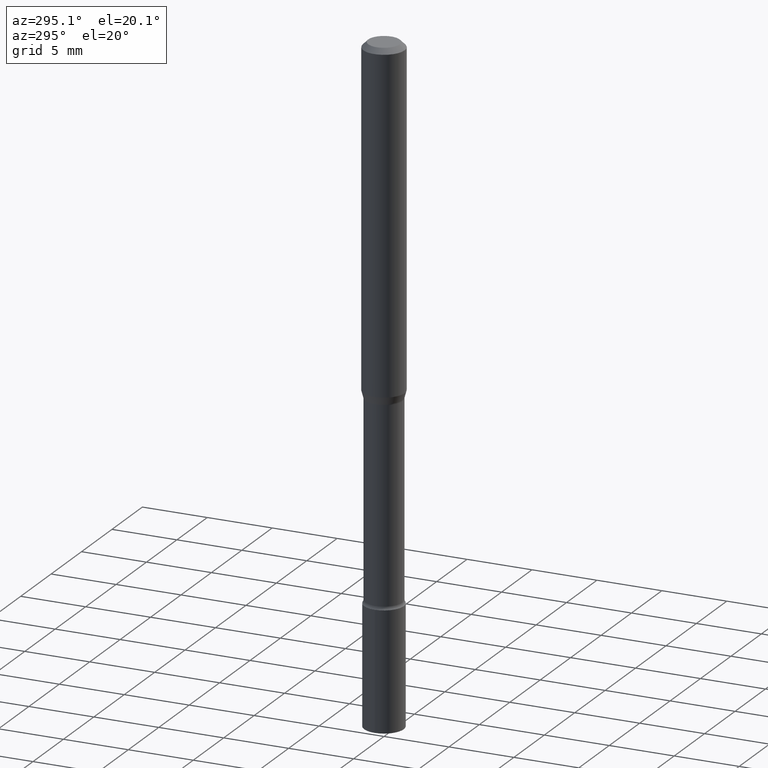
[diagram: clean part render]
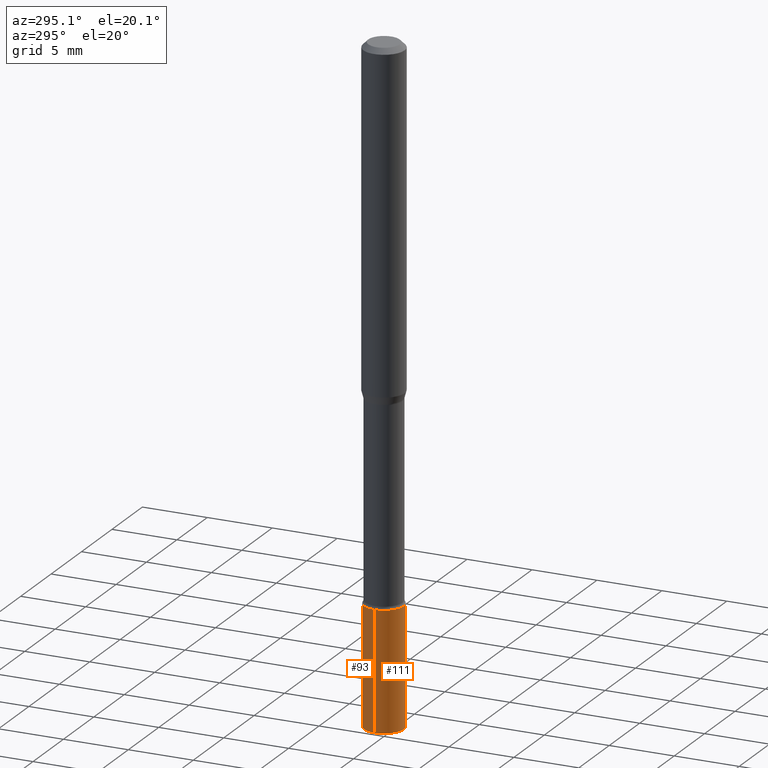
[diagram: same view with one multi-face feature highlighted, each face labeled with its STEP entity id]
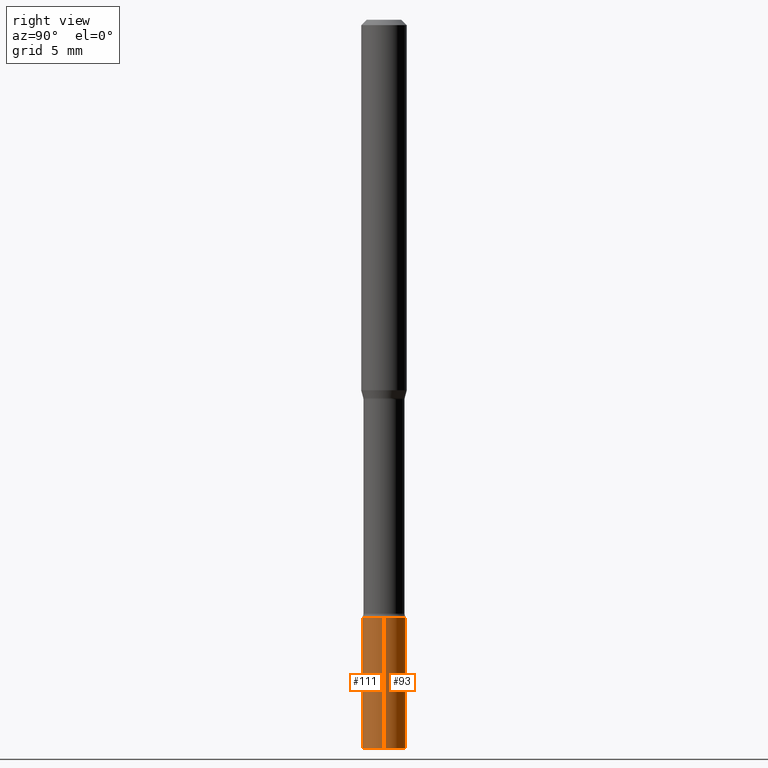
[diagram: same view with one multi-face feature highlighted, each face labeled with its STEP entity id]
A machine part, auxiliary view. The highlighted faces form ONE feature: a constant-radius fillet chain: 2 tangent blend faces with common blend radius 1.524 mm. The faces share edges in the B-rep.
A second angle (right view) of the same feature is appended — it is thin or edge-on in the first view.
Their STEP definitions:
[1] entity #93 (Cylinder):
#10 = DIRECTION ( 'NONE',  ( -2.445468806185136877E-29, 3.491481338843145188E-15, 1.000000000000000000 ) ) ;
#13 = CARTESIAN_POINT ( 'NONE',  ( 4.890937612370273194E-29, -6.982962677686291165E-15, -2.000000000000000000 ) ) ;
#17 = DIRECTION ( 'NONE',  ( 1.000000000000000000, -6.982962677686267499E-15, 4.876176775795936353E-29 ) ) ;
#19 = EDGE_CURVE ( 'NONE', #133, #24, #217, .T. ) ;
#24 = VERTEX_POINT ( 'NONE', #478 ) ;
#47 = CARTESIAN_POINT ( 'NONE',  ( 0.05999999999999999778, -7.401940438347467010E-15, -2.000000000000000000 ) ) ;
#72 = EDGE_LOOP ( 'NONE', ( #212, #209, #131, #184 ) ) ;
#82 = VECTOR ( 'NONE', #497, 39.37007874015748143 ) ;
#90 = AXIS2_PLACEMENT_3D ( 'NONE', #13, #328, #504 ) ;
#93 = ADVANCED_FACE ( 'NONE', ( #486 ), #365, .T. ) ;
#105 = VERTEX_POINT ( 'NONE', #47 ) ;
#131 = ORIENTED_EDGE ( 'NONE', *, *, #19, .F. ) ;
#133 = VERTEX_POINT ( 'NONE', #211 ) ;
#184 = ORIENTED_EDGE ( 'NONE', *, *, #210, .F. ) ;
#197 = CARTESIAN_POINT ( 'NONE',  ( -0.05999999999999999778, -5.928170395238464936E-15, -2.000000000000000000 ) ) ;
#198 = VECTOR ( 'NONE', #10, 39.37007874015748143 ) ;
#209 = ORIENTED_EDGE ( 'NONE', *, *, #503, .T. ) ;
#210 = EDGE_CURVE ( 'NONE', #105, #133, #226, .T. ) ;
#211 = CARTESIAN_POINT ( 'NONE',  ( 0.05999999999999999778, -6.145007156363934742E-15, -1.639999999999999902 ) ) ;
#212 = ORIENTED_EDGE ( 'NONE', *, *, #453, .T. ) ;
#217 = CIRCLE ( 'NONE', #286, 0.05999999999999999778 ) ;
#222 = CARTESIAN_POINT ( 'NONE',  ( 4.010568842143624288E-29, -5.726029395702758897E-15, -1.639999999999999902 ) ) ;
#226 = LINE ( 'NONE', #358, #198 ) ;
#237 = LINE ( 'NONE', #461, #82 ) ;
#286 = AXIS2_PLACEMENT_3D ( 'NONE', #222, #485, #425 ) ;
#305 = VERTEX_POINT ( 'NONE', #197 ) ;
#328 = DIRECTION ( 'NONE',  ( -2.445468806185136597E-29, 3.491481338843145583E-15, 1.000000000000000000 ) ) ;
#358 = CARTESIAN_POINT ( 'NONE',  ( 0.05999999999999999778, -4.189777606611760421E-16, 2.925706065477561756E-30 ) ) ;
#365 = CYLINDRICAL_SURFACE ( 'NONE', #412, 0.05999999999999999778 ) ;
#412 = AXIS2_PLACEMENT_3D ( 'NONE', #451, #445, #17 ) ;
#421 = CIRCLE ( 'NONE', #90, 0.05999999999999999778 ) ;
#425 = DIRECTION ( 'NONE',  ( 1.000000000000000000, -6.982962677686268288E-15, 0.000000000000000000 ) ) ;
#445 = DIRECTION ( 'NONE',  ( -2.445468806185136597E-29, 3.491481338843145583E-15, 1.000000000000000000 ) ) ;
#451 = CARTESIAN_POINT ( 'NONE',  ( 0.000000000000000000, 0.000000000000000000, 0.000000000000000000 ) ) ;
#453 = EDGE_CURVE ( 'NONE', #105, #305, #421, .T. ) ;
#461 = CARTESIAN_POINT ( 'NONE',  ( -0.05999999999999999778, 4.263256414560600957E-16, -2.951361054152943413E-30 ) ) ;
#478 = CARTESIAN_POINT ( 'NONE',  ( -0.05999999999999999778, -5.928170395238464936E-15, -1.639999999999999902 ) ) ;
#485 = DIRECTION ( 'NONE',  ( -2.445468806185136597E-29, 3.491481338843145583E-15, 1.000000000000000000 ) ) ;
#486 = FACE_OUTER_BOUND ( 'NONE', #72, .T. ) ;
#497 = DIRECTION ( 'NONE',  ( -2.445468806185136877E-29, 3.491481338843145188E-15, 1.000000000000000000 ) ) ;
#503 = EDGE_CURVE ( 'NONE', #305, #24, #237, .T. ) ;
#504 = DIRECTION ( 'NONE',  ( 1.000000000000000000, -6.982962677686268288E-15, 0.000000000000000000 ) ) ;
[2] entity #111 (Cylinder):
#3 = DIRECTION ( 'NONE',  ( -2.445468806185136597E-29, 3.491481338843145583E-15, 1.000000000000000000 ) ) ;
#9 = CYLINDRICAL_SURFACE ( 'NONE', #149, 0.05999999999999999778 ) ;
#10 = DIRECTION ( 'NONE',  ( -2.445468806185136877E-29, 3.491481338843145188E-15, 1.000000000000000000 ) ) ;
#24 = VERTEX_POINT ( 'NONE', #478 ) ;
#26 = CARTESIAN_POINT ( 'NONE',  ( 4.010568842143624288E-29, -5.726029395702758897E-15, -1.639999999999999902 ) ) ;
#39 = AXIS2_PLACEMENT_3D ( 'NONE', #26, #94, #360 ) ;
#47 = CARTESIAN_POINT ( 'NONE',  ( 0.05999999999999999778, -7.401940438347467010E-15, -2.000000000000000000 ) ) ;
#82 = VECTOR ( 'NONE', #497, 39.37007874015748143 ) ;
#94 = DIRECTION ( 'NONE',  ( -2.445468806185136597E-29, 3.491481338843145583E-15, 1.000000000000000000 ) ) ;
#105 = VERTEX_POINT ( 'NONE', #47 ) ;
#111 = ADVANCED_FACE ( 'NONE', ( #192 ), #9, .T. ) ;
#133 = VERTEX_POINT ( 'NONE', #211 ) ;
#149 = AXIS2_PLACEMENT_3D ( 'NONE', #241, #3, #156 ) ;
#156 = DIRECTION ( 'NONE',  ( 1.000000000000000000, -6.982962677686267499E-15, 4.876176775795936353E-29 ) ) ;
#160 = CARTESIAN_POINT ( 'NONE',  ( 4.890937612370273194E-29, -6.982962677686291165E-15, -2.000000000000000000 ) ) ;
#166 = AXIS2_PLACEMENT_3D ( 'NONE', #160, #437, #322 ) ;
#192 = FACE_OUTER_BOUND ( 'NONE', #201, .T. ) ;
#197 = CARTESIAN_POINT ( 'NONE',  ( -0.05999999999999999778, -5.928170395238464936E-15, -2.000000000000000000 ) ) ;
#198 = VECTOR ( 'NONE', #10, 39.37007874015748143 ) ;
#201 = EDGE_LOOP ( 'NONE', ( #345, #362, #475, #499 ) ) ;
#210 = EDGE_CURVE ( 'NONE', #105, #133, #226, .T. ) ;
#211 = CARTESIAN_POINT ( 'NONE',  ( 0.05999999999999999778, -6.145007156363934742E-15, -1.639999999999999902 ) ) ;
#220 = EDGE_CURVE ( 'NONE', #305, #105, #374, .T. ) ;
#224 = CIRCLE ( 'NONE', #39, 0.05999999999999999778 ) ;
#226 = LINE ( 'NONE', #358, #198 ) ;
#237 = LINE ( 'NONE', #461, #82 ) ;
#241 = CARTESIAN_POINT ( 'NONE',  ( 0.000000000000000000, 0.000000000000000000, 0.000000000000000000 ) ) ;
#296 = EDGE_CURVE ( 'NONE', #24, #133, #224, .T. ) ;
#305 = VERTEX_POINT ( 'NONE', #197 ) ;
#322 = DIRECTION ( 'NONE',  ( 1.000000000000000000, -6.982962677686268288E-15, 0.000000000000000000 ) ) ;
#345 = ORIENTED_EDGE ( 'NONE', *, *, #503, .F. ) ;
#358 = CARTESIAN_POINT ( 'NONE',  ( 0.05999999999999999778, -4.189777606611760421E-16, 2.925706065477561756E-30 ) ) ;
#360 = DIRECTION ( 'NONE',  ( 1.000000000000000000, -6.982962677686268288E-15, 0.000000000000000000 ) ) ;
#362 = ORIENTED_EDGE ( 'NONE', *, *, #220, .T. ) ;
#374 = CIRCLE ( 'NONE', #166, 0.05999999999999999778 ) ;
#437 = DIRECTION ( 'NONE',  ( -2.445468806185136597E-29, 3.491481338843145583E-15, 1.000000000000000000 ) ) ;
#461 = CARTESIAN_POINT ( 'NONE',  ( -0.05999999999999999778, 4.263256414560600957E-16, -2.951361054152943413E-30 ) ) ;
#475 = ORIENTED_EDGE ( 'NONE', *, *, #210, .T. ) ;
#478 = CARTESIAN_POINT ( 'NONE',  ( -0.05999999999999999778, -5.928170395238464936E-15, -1.639999999999999902 ) ) ;
#497 = DIRECTION ( 'NONE',  ( -2.445468806185136877E-29, 3.491481338843145188E-15, 1.000000000000000000 ) ) ;
#499 = ORIENTED_EDGE ( 'NONE', *, *, #296, .F. ) ;
#503 = EDGE_CURVE ( 'NONE', #305, #24, #237, .T. ) ;